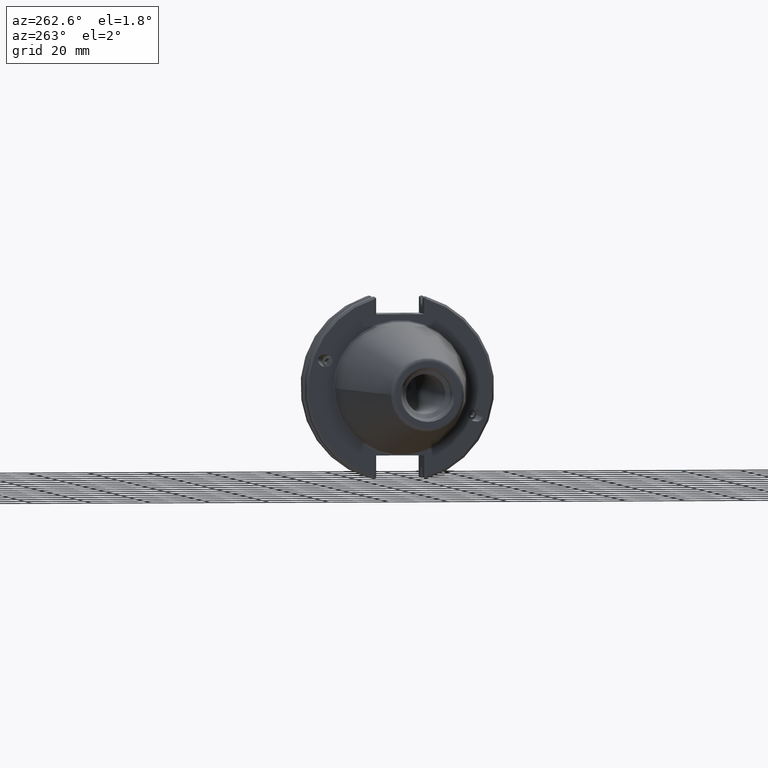
[diagram: clean part render]
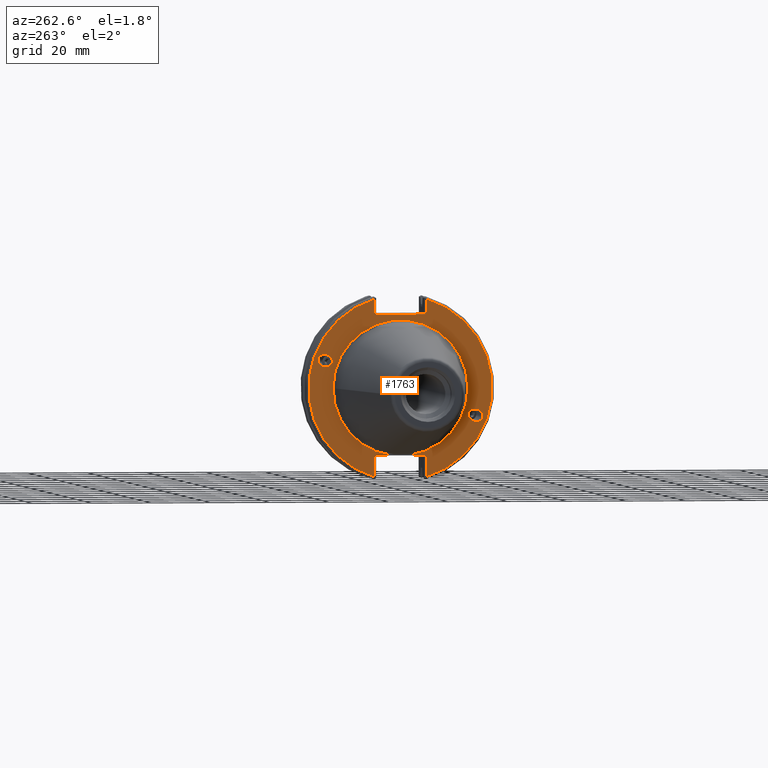
[diagram: same view with one face highlighted and labeled with its STEP entity id]
A machine part, auxiliary view. The second image highlights one B-rep face of the part: STEP entity #1763.
In plain terms, the highlighted planar face has unit normal (-1, 0, 0).
Its self-contained STEP definition (entity closure, byte-faithful):
#118=CARTESIAN_POINT('',(3.174999999999999,-23.020225310704397,-8.378676799197839));
#119=VERTEX_POINT('',#118);
#120=CARTESIAN_POINT('',(3.174999999999999,-25.371888699743685,-9.234612273821719));
#121=DIRECTION('',(1.000000000000000,0.0,0.0));
#122=DIRECTION('',(0.0,-0.939692620785909,-0.342020143325669));
#123=AXIS2_PLACEMENT_3D('',#120,#121,#122);
#124=ELLIPSE('',#123,2.502587906960984,2.050000000000002);
#125=EDGE_CURVE('',#119,#119,#124,.T.);
#345=CARTESIAN_POINT('',(3.174999999999999,23.020225310704411,8.378676799197804));
#346=VERTEX_POINT('',#345);
#347=CARTESIAN_POINT('',(3.174999999999999,25.371888699743685,9.234612273821718));
#348=DIRECTION('',(1.0,0.0,0.0));
#349=DIRECTION('',(0.0,0.939692620785904,0.342020143325682));
#350=AXIS2_PLACEMENT_3D('',#347,#348,#349);
#351=ELLIPSE('',#350,2.502587906960984,2.050000000000002);
#352=EDGE_CURVE('',#346,#346,#351,.T.);
#1062=CARTESIAN_POINT('',(3.174999999999999,8.762999999989296,24.688799999999993));
#1063=VERTEX_POINT('',#1062);
#1070=CARTESIAN_POINT('',(3.174999999999999,-8.763000000010706,24.688799999999993));
#1071=VERTEX_POINT('',#1070);
#1072=CARTESIAN_POINT('',(3.174999999999999,8.762999999989296,24.688799999999993));
#1073=DIRECTION('',(0.0,-1.0,0.0));
#1074=VECTOR('',#1073,17.526000000000003);
#1075=LINE('',#1072,#1074);
#1076=EDGE_CURVE('',#1063,#1071,#1075,.T.);
#1633=CARTESIAN_POINT('',(3.174999999999999,-2.837647257852875,-22.555200000000006));
#1634=VERTEX_POINT('',#1633);
#1635=CARTESIAN_POINT('',(3.174999999999999,2.837647257852875,-22.555200000000006));
#1636=VERTEX_POINT('',#1635);
#1665=CARTESIAN_POINT('',(3.174999999999999,0.0,0.0));
#1666=DIRECTION('',(-1.0,0.0,0.0));
#1667=DIRECTION('',(0.0,-1.0,0.0));
#1668=AXIS2_PLACEMENT_3D('',#1665,#1666,#1667);
#1669=CIRCLE('',#1668,22.733000000000004);
#1670=EDGE_CURVE('',#1634,#1636,#1669,.T.);
#1686=CARTESIAN_POINT('',(3.174999999999999,26.987499999999997,0.0));
#1687=DIRECTION('',(-1.0,0.0,0.0));
#1688=DIRECTION('',(0.0,0.0,1.0));
#1689=AXIS2_PLACEMENT_3D('',#1686,#1687,#1688);
#1690=PLANE('',#1689);
#1691=ORIENTED_EDGE('',*,*,#1670,.F.);
#1692=CARTESIAN_POINT('',(3.174999999999999,-8.763000000009095,-22.555200000000006));
#1693=VERTEX_POINT('',#1692);
#1694=CARTESIAN_POINT('',(3.174999999999999,-8.763000000009093,-22.555200000000006));
#1695=DIRECTION('',(0.0,1.0,0.0));
#1696=VECTOR('',#1695,5.925352742156218);
#1697=LINE('',#1694,#1696);
#1698=EDGE_CURVE('',#1693,#1634,#1697,.T.);
#1699=ORIENTED_EDGE('',*,*,#1698,.F.);
#1700=CARTESIAN_POINT('',(3.174999999999999,-8.763000000009095,-29.723155535707182));
#1701=VERTEX_POINT('',#1700);
#1702=CARTESIAN_POINT('',(3.174999999999999,-8.763000000009095,-29.723155535707178));
#1703=DIRECTION('',(0.0,0.0,1.0));
#1704=VECTOR('',#1703,7.167955535707172);
#1705=LINE('',#1702,#1704);
#1706=EDGE_CURVE('',#1701,#1693,#1705,.T.);
#1707=ORIENTED_EDGE('',*,*,#1706,.F.);
#1708=CARTESIAN_POINT('',(3.174999999999999,-8.763000000010706,29.723155535706706));
#1709=VERTEX_POINT('',#1708);
#1710=CARTESIAN_POINT('',(3.174999999999999,0.0,0.0));
#1711=DIRECTION('',(1.0,0.0,0.0));
#1712=DIRECTION('',(0.0,-1.0,0.0));
#1713=AXIS2_PLACEMENT_3D('',#1710,#1711,#1712);
#1714=CIRCLE('',#1713,30.988000000000000);
#1715=EDGE_CURVE('',#1709,#1701,#1714,.T.);
#1716=ORIENTED_EDGE('',*,*,#1715,.F.);
#1717=CARTESIAN_POINT('',(3.174999999999999,-8.763000000010706,24.688799999999993));
#1718=DIRECTION('',(0.0,0.0,1.0));
#1719=VECTOR('',#1718,5.034355535706713);
#1720=LINE('',#1717,#1719);
#1721=EDGE_CURVE('',#1071,#1709,#1720,.T.);
#1722=ORIENTED_EDGE('',*,*,#1721,.F.);
#1723=ORIENTED_EDGE('',*,*,#1076,.F.);
#1724=CARTESIAN_POINT('',(3.174999999999999,8.762999999989296,29.723155535713019));
#1725=VERTEX_POINT('',#1724);
#1726=CARTESIAN_POINT('',(3.174999999999999,8.762999999989296,29.723155535713019));
#1727=DIRECTION('',(0.0,0.0,-1.0));
#1728=VECTOR('',#1727,5.034355535713026);
#1729=LINE('',#1726,#1728);
#1730=EDGE_CURVE('',#1725,#1063,#1729,.T.);
#1731=ORIENTED_EDGE('',*,*,#1730,.F.);
#1732=CARTESIAN_POINT('',(3.174999999999999,8.762999999990909,-29.723155535712543));
#1733=VERTEX_POINT('',#1732);
#1734=CARTESIAN_POINT('',(3.174999999999999,0.0,0.0));
#1735=DIRECTION('',(1.0,0.0,0.0));
#1736=DIRECTION('',(0.0,1.0,0.0));
#1737=AXIS2_PLACEMENT_3D('',#1734,#1735,#1736);
#1738=CIRCLE('',#1737,30.988000000000000);
#1739=EDGE_CURVE('',#1733,#1725,#1738,.T.);
#1740=ORIENTED_EDGE('',*,*,#1739,.F.);
#1741=CARTESIAN_POINT('',(3.174999999999999,8.762999999990909,-22.555200000000006));
#1742=VERTEX_POINT('',#1741);
#1743=CARTESIAN_POINT('',(3.174999999999999,8.762999999990909,-22.555200000000006));
#1744=DIRECTION('',(0.0,0.0,-1.0));
#1745=VECTOR('',#1744,7.167955535712537);
#1746=LINE('',#1743,#1745);
#1747=EDGE_CURVE('',#1742,#1733,#1746,.T.);
#1748=ORIENTED_EDGE('',*,*,#1747,.F.);
#1749=CARTESIAN_POINT('',(3.174999999999999,2.837647257852876,-22.555200000000006));
#1750=DIRECTION('',(0.0,1.0,0.0));
#1751=VECTOR('',#1750,5.925352742138033);
#1752=LINE('',#1749,#1751);
#1753=EDGE_CURVE('',#1636,#1742,#1752,.T.);
#1754=ORIENTED_EDGE('',*,*,#1753,.F.);
#1755=EDGE_LOOP('',(#1691,#1699,#1707,#1716,#1722,#1723,#1731,#1740,#1748,#1754));
#1756=FACE_OUTER_BOUND('',#1755,.T.);
#1757=ORIENTED_EDGE('',*,*,#125,.T.);
#1758=EDGE_LOOP('',(#1757));
#1759=FACE_BOUND('',#1758,.T.);
#1760=ORIENTED_EDGE('',*,*,#352,.T.);
#1761=EDGE_LOOP('',(#1760));
#1762=FACE_BOUND('',#1761,.T.);
#1763=ADVANCED_FACE('',(#1756,#1759,#1762),#1690,.T.);